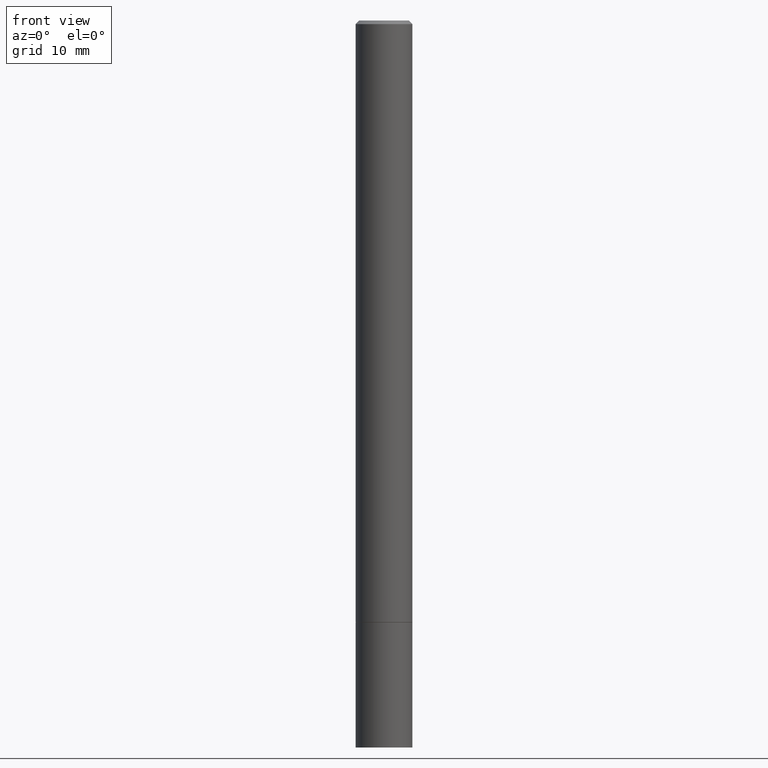
[diagram: clean part render]
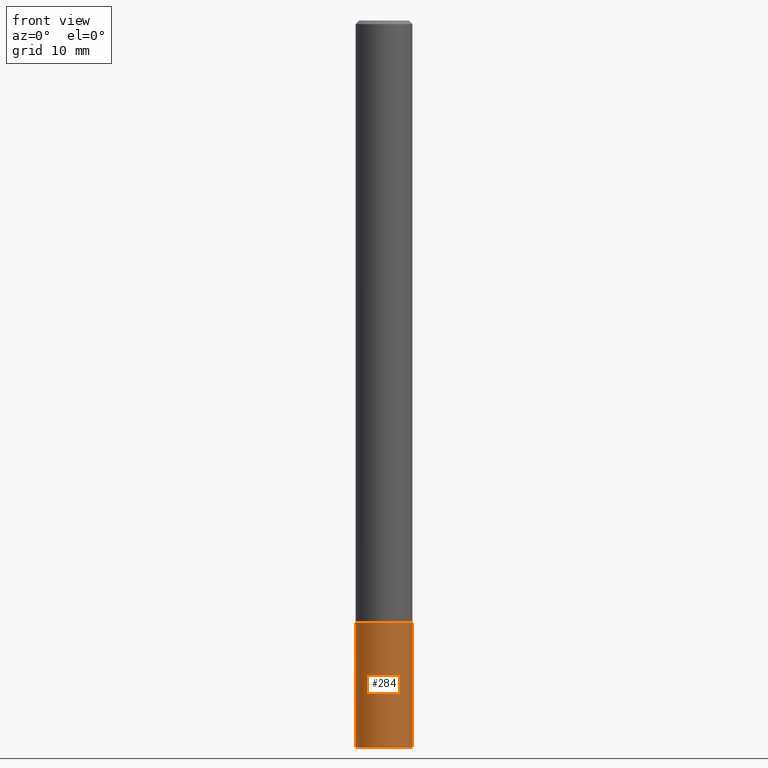
[diagram: same view with one face highlighted and labeled with its STEP entity id]
A machine part, front view. The second image highlights one B-rep face of the part: STEP entity #284.
In plain terms, the highlighted cylindrical surface (edge-blend (fillet) strip) has radius 3.9688 mm, axis along (-0, 0, 1).
Its self-contained STEP definition (entity closure, byte-faithful):
#1 = VERTEX_POINT ( 'NONE', #352 ) ;
#16 = VERTEX_POINT ( 'NONE', #98 ) ;
#39 = CIRCLE ( 'NONE', #193, 0.1562500000000000000 ) ;
#51 = CARTESIAN_POINT ( 'NONE',  ( 0.1562500000000000000, -1.091087918388479174E-15, 7.619026212181150377E-30 ) ) ;
#76 = LINE ( 'NONE', #51, #295 ) ;
#79 = FACE_OUTER_BOUND ( 'NONE', #234, .T. ) ;
#80 = CARTESIAN_POINT ( 'NONE',  ( -0.1562500000000000000, 1.110223024625156540E-15, -7.685836078523291160E-30 ) ) ;
#98 = CARTESIAN_POINT ( 'NONE',  ( 0.1562500000000000000, -1.265487411263697714E-14, -3.312000000000000277 ) ) ;
#104 = DIRECTION ( 'NONE',  ( -2.445468806185136597E-29, 3.491481338843145583E-15, 1.000000000000000000 ) ) ;
#105 = DIRECTION ( 'NONE',  ( -2.445468806185136877E-29, 3.491481338843145188E-15, 1.000000000000000000 ) ) ;
#110 = VERTEX_POINT ( 'NONE', #146 ) ;
#117 = ORIENTED_EDGE ( 'NONE', *, *, #195, .F. ) ;
#126 = VERTEX_POINT ( 'NONE', #132 ) ;
#128 = LINE ( 'NONE', #80, #166 ) ;
#129 = EDGE_CURVE ( 'NONE', #126, #16, #39, .T. ) ;
#132 = CARTESIAN_POINT ( 'NONE',  ( -0.1562500000000000000, -1.165463275018538400E-14, -3.312000000000000277 ) ) ;
#146 = CARTESIAN_POINT ( 'NONE',  ( 0.1562500000000000000, -1.505701327376106229E-14, -4.000000000000000000 ) ) ;
#166 = VECTOR ( 'NONE', #105, 39.37007874015748143 ) ;
#185 = EDGE_CURVE ( 'NONE', #1, #110, #231, .T. ) ;
#192 = CYLINDRICAL_SURFACE ( 'NONE', #357, 0.1562500000000000000 ) ;
#193 = AXIS2_PLACEMENT_3D ( 'NONE', #325, #104, #273 ) ;
#195 = EDGE_CURVE ( 'NONE', #1, #126, #128, .T. ) ;
#200 = ORIENTED_EDGE ( 'NONE', *, *, #241, .T. ) ;
#231 = CIRCLE ( 'NONE', #303, 0.1562500000000000000 ) ;
#234 = EDGE_LOOP ( 'NONE', ( #117, #260, #200, #271 ) ) ;
#241 = EDGE_CURVE ( 'NONE', #110, #16, #76, .T. ) ;
#249 = DIRECTION ( 'NONE',  ( -2.445468806185136597E-29, 3.491481338843145583E-15, 1.000000000000000000 ) ) ;
#250 = CARTESIAN_POINT ( 'NONE',  ( 9.781875224740546387E-29, -1.396592535537258233E-14, -4.000000000000000000 ) ) ;
#260 = ORIENTED_EDGE ( 'NONE', *, *, #185, .T. ) ;
#262 = CARTESIAN_POINT ( 'NONE',  ( 0.000000000000000000, 0.000000000000000000, 0.000000000000000000 ) ) ;
#264 = DIRECTION ( 'NONE',  ( 1.000000000000000000, -6.982962677686266711E-15, 4.876176775795936353E-29 ) ) ;
#271 = ORIENTED_EDGE ( 'NONE', *, *, #129, .F. ) ;
#273 = DIRECTION ( 'NONE',  ( 1.000000000000000000, -6.982962677686262766E-15, 0.000000000000000000 ) ) ;
#284 = ADVANCED_FACE ( 'NONE', ( #79 ), #192, .T. ) ;
#295 = VECTOR ( 'NONE', #362, 39.37007874015748143 ) ;
#298 = DIRECTION ( 'NONE',  ( 1.000000000000000000, -6.982962677686262766E-15, 0.000000000000000000 ) ) ;
#303 = AXIS2_PLACEMENT_3D ( 'NONE', #250, #249, #298 ) ;
#325 = CARTESIAN_POINT ( 'NONE',  ( 8.099392686085172175E-29, -1.156378619424849876E-14, -3.312000000000000277 ) ) ;
#341 = DIRECTION ( 'NONE',  ( -2.445468806185136597E-29, 3.491481338843145583E-15, 1.000000000000000000 ) ) ;
#352 = CARTESIAN_POINT ( 'NONE',  ( -0.1562500000000000000, -1.165463275018538400E-14, -4.000000000000000000 ) ) ;
#357 = AXIS2_PLACEMENT_3D ( 'NONE', #262, #341, #264 ) ;
#362 = DIRECTION ( 'NONE',  ( -2.445468806185136877E-29, 3.491481338843145188E-15, 1.000000000000000000 ) ) ;